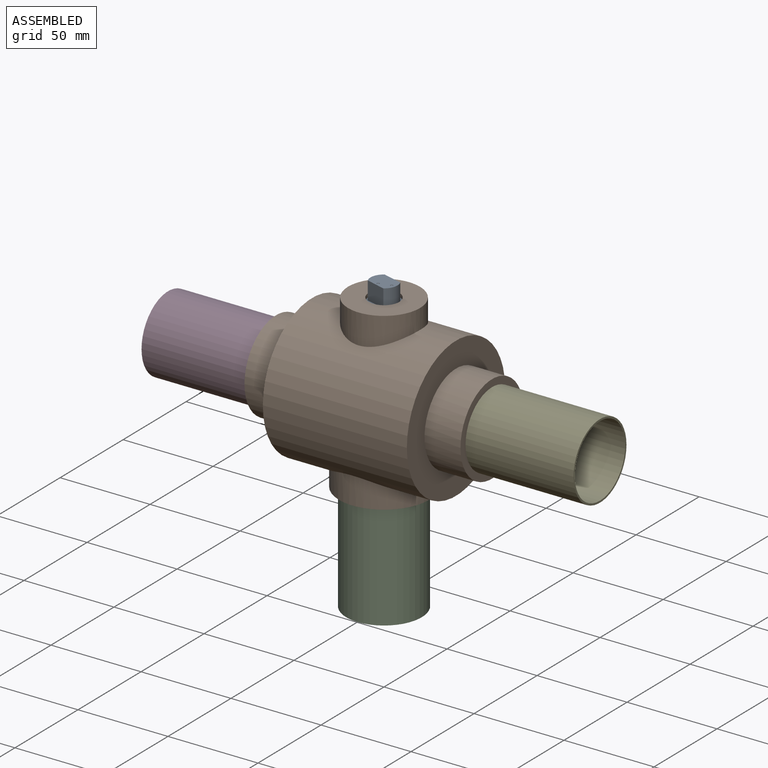
[diagram: assembled view]
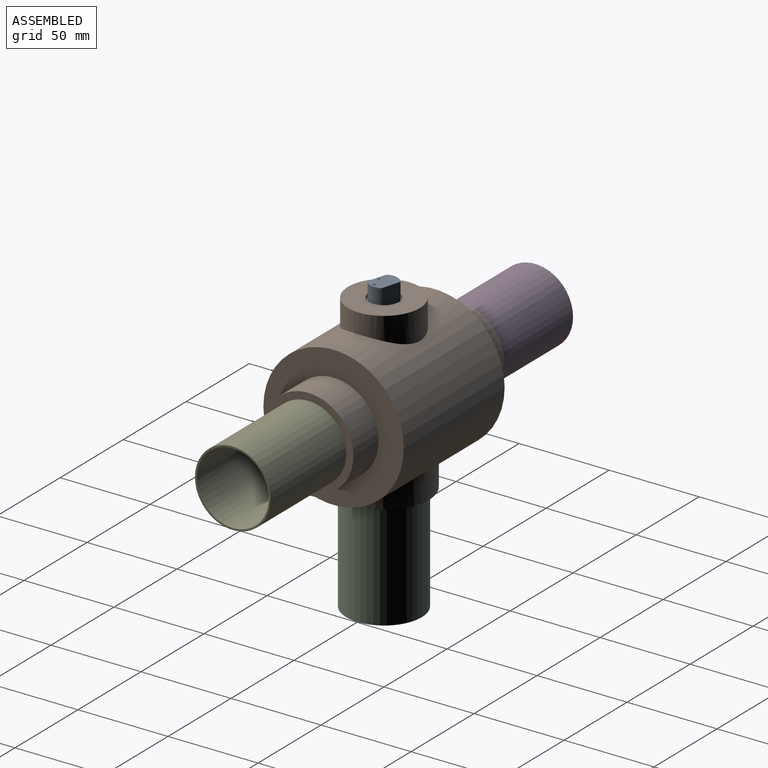
[diagram: assembled view, second angle]
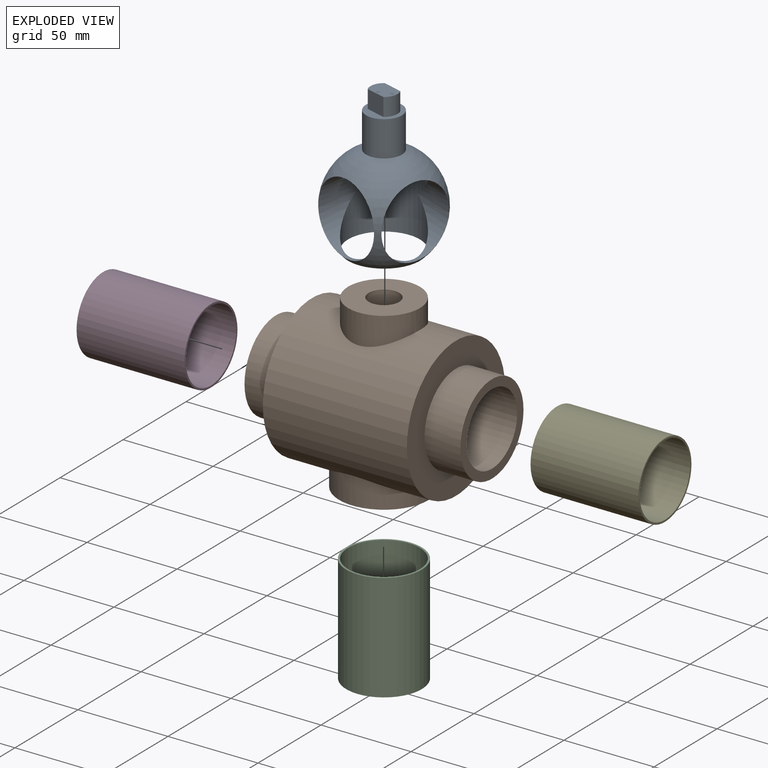
[diagram: exploded view]
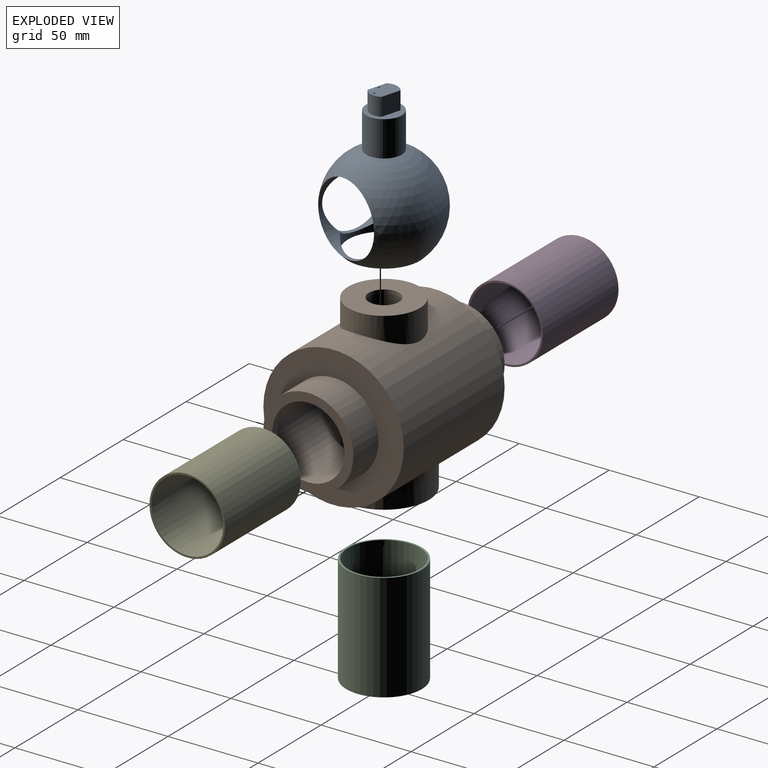
[diagram: exploded view, second angle]
ASSEMBLY  parts=5 mates=7
PART A: 16 faces, bbox 60x60x80.4 mm
  f0: cylinder r=7.5mm len=10mm, axis (0,0,-1), area 109.5mm2, adj f1,f10,f12,f13
  f1: plane 15x10mm, normal (0,0,1), area 134.5mm2, adj f0,f11,f12,f13,f14,f15
  f2: cylinder r=20mm len=20mm, axis (0,0,1), area 62.6mm2, adj f6,f7,f8
  f3: sphere r=30mm, area 6666.3mm2, adj f5,f7,f8,f9
  f4: cylinder r=20mm len=20mm, axis (0,0,1), area 228.3mm2, adj f5,f6,f7
  f5: cylinder r=20mm len=42.36mm, axis (0,0,1), area 2300.9mm2, adj f3,f4,f6,f7,f8
  f6: plane 40x40mm, normal (0,0,-1), area 1256.6mm2, adj f2,f4,f5
  f7: cylinder r=20mm len=40mm, axis (0,1,0), area 878.6mm2, adj f2,f3,f4,f5,f8
  f8: cylinder r=20mm len=40mm, axis (1,0,0), area 878.6mm2, adj f2,f3,f5,f7
  f9: cylinder r=10mm len=20mm, axis (0,0,-1), area 1238.8mm2, adj f3,f10
  f10: plane 20x20mm, normal (0,0,1), area 176.2mm2, adj f0,f9,f11,f12,f13
  f11: cylinder r=7.5mm len=10mm, axis (0,0,-1), area 109.5mm2, adj f1,f10,f12,f13
  f12: plane 11.18x10mm, normal (1,0,0), area 111.8mm2, adj f0,f1,f10,f11
  f13: plane 11.18x10mm, normal (-1,0,0), area 111.8mm2, adj f0,f1,f10,f11
  f14: sphere r=0.75mm, area 3.5mm2, adj f1
  f15: sphere r=0.75mm, area 3.5mm2, adj f1
PART B: 18 faces, bbox 120x78x95 mm
  f0: cylinder r=39mm len=80mm, axis (-1,0,0), area 16212.3mm2, adj f1,f2,f3,f9
  f1: plane 78x78mm, normal (1,0,0), area 2814.9mm2, adj f0,f7
  f2: plane 78x78mm, normal (-1,0,0), area 2814.9mm2, adj f0,f6
  f3: cylinder r=25mm len=50mm, axis (0,0,1), area 1631.4mm2, adj f0,f4
  f4: plane 50x50mm, normal (0,0,-1), area 706.9mm2, adj f3,f11
  f5: plane 50x50mm, normal (-1,0,0), area 706.9mm2, adj f6,f13
  f6: cylinder r=25mm len=50mm, axis (-1,0,0), area 3141.6mm2, adj f2,f5
  f7: cylinder r=25mm len=50mm, axis (-1,0,0), area 3141.6mm2, adj f1,f8
  f8: plane 50x50mm, normal (1,0,0), area 706.9mm2, adj f7,f14
  f9: cylinder r=20mm len=40mm, axis (0,0,-1), area 1722.5mm2, adj f0,f16
  f10: cylinder r=10mm len=20mm, axis (0,0,-1), area 1238.8mm2, adj f12,f15
  f11: cylinder r=20mm len=40mm, axis (0,0,1), area 2844.9mm2, adj f4,f12
  f12: sphere r=30mm, area 6666.3mm2, adj f10,f11,f13,f14
  f13: cylinder r=20mm len=40mm, axis (1,0,0), area 4729.9mm2, adj f5,f12
  f14: cylinder r=20mm len=40mm, axis (1,0,0), area 4729.9mm2, adj f8,f12
  f15: plane 20x20mm, normal (0,0,-1), area 87.2mm2, adj f10,f17
  f16: plane 40x40mm, normal (0,0,1), area 1029.7mm2, adj f9,f17
  f17: cylinder r=8.5mm len=17mm, axis (0,0,1), area 106.8mm2, adj f15,f16
PART C: 4 faces, bbox 60x42x42 mm
  f0: cylinder r=21mm len=60mm, axis (1,0,0), area 7916.8mm2, adj f1,f2
  f1: plane 42x42mm, normal (-1,0,0), area 128.8mm2, adj f0,f3
  f2: plane 42x42mm, normal (1,0,0), area 128.8mm2, adj f0,f3
  f3: cylinder r=20mm len=60mm, axis (-1,0,0), area 7539.8mm2, adj f1,f2
PART D: same geometry as C
PART E: same geometry as C
PLACE A rot(axis=(0,0,1),74.6deg) t=(0,0,0)mm
PLACE B at identity fixed
PLACE C rot(axis=(0,-1,0),90deg) t=(0,0,15)mm
PLACE D at identity
PLACE E t=(180,0,0)mm
MATE cylindrical D.f0 <-> B.f0  axis (1,0,0) through (-90,0,0)mm
MATE cylindrical E.f0 <-> B.f0  axis (1,0,0) through (90,0,0)mm
MATE planar D.f0 <-> B.f0  axis (1,0,0) through (-60,0,0)mm
MATE cylindrical C.f0 <-> B.f3  axis (0,0,1) through (0,0,-45)mm
MATE planar E.f0 <-> B.f0  axis (-1,0,0) through (60,0,0)mm
MATE cylindrical A.f0 <-> B.f3  axis (0,0,-1) through (0,0,38.14)mm
MATE planar C.f0 <-> B.f3  axis (0,0,1) through (0,0,-45)mm
